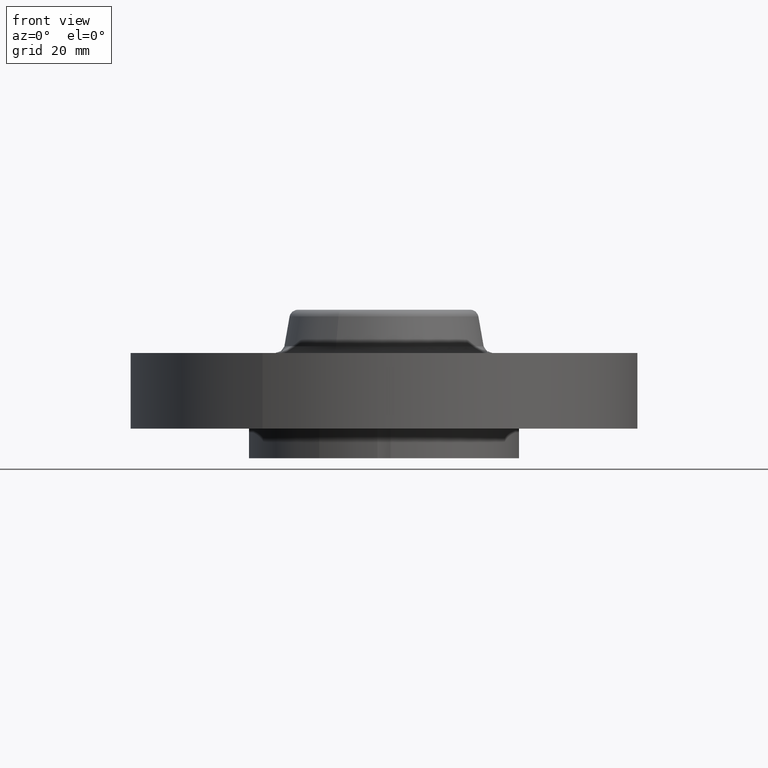
[diagram: clean part render]
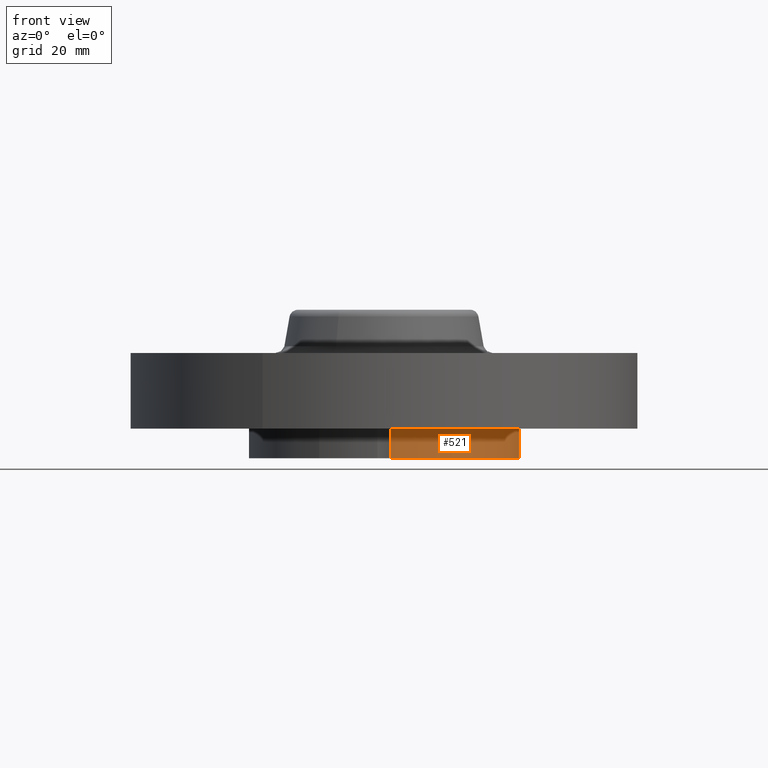
[diagram: same view with one face highlighted and labeled with its STEP entity id]
A machine part, front view. The second image highlights one B-rep face of the part: STEP entity #521.
In plain terms, the highlighted cylindrical surface (partial cylindrical patch) has radius 25.4 mm, axis along (0, 0, -1).
Its self-contained STEP definition (entity closure, byte-faithful):
#127=AXIS2_PLACEMENT_3D('Cylinder Axis2P3D',#124,#125,#126) ;
#489=AXIS2_PLACEMENT_3D('Circle Axis2P3D',#487,#488,$) ;
#505=AXIS2_PLACEMENT_3D('Circle Axis2P3D',#503,#504,$) ;
#124=CARTESIAN_POINT('Axis2P3D Location',(0.,0.,0.330625000001)) ;
#487=CARTESIAN_POINT('Axis2P3D Location',(0.,0.,-0.218750000001)) ;
#491=CARTESIAN_POINT('Vertex',(0.998807251912,-0.0488269754871,-0.218750000001)) ;
#493=CARTESIAN_POINT('Vertex',(0.0488269754871,-0.998807251912,-0.218750000001)) ;
#496=CARTESIAN_POINT('Line Origine',(0.998807251912,-0.0488269754871,-0.109375)) ;
#500=CARTESIAN_POINT('Vertex',(0.998807251912,-0.0488269754871,6.99353086378E-017)) ;
#503=CARTESIAN_POINT('Axis2P3D Location',(0.,0.,6.99353086378E-017)) ;
#507=CARTESIAN_POINT('Vertex',(0.0488269754871,-0.998807251912,6.99353086378E-017)) ;
#510=CARTESIAN_POINT('Line Origine',(0.0488269754871,-0.998807251912,-0.109375)) ;
#125=DIRECTION('Axis2P3D Direction',(0.,0.,-0.0393700787402)) ;
#126=DIRECTION('Axis2P3D XDirection',(0.0188750212049,0.0345504945626,0.)) ;
#488=DIRECTION('Axis2P3D Direction',(0.,0.,-0.0393700787402)) ;
#497=DIRECTION('Vector Direction',(0.,0.,-0.0393700787402)) ;
#504=DIRECTION('Axis2P3D Direction',(0.,0.,-0.0393700787402)) ;
#511=DIRECTION('Vector Direction',(0.,0.,-0.0393700787402)) ;
#498=VECTOR('Line Direction',#497,0.0393700787402) ;
#512=VECTOR('Line Direction',#511,0.0393700787402) ;
#516=ORIENTED_EDGE('',*,*,#495,.F.) ;
#517=ORIENTED_EDGE('',*,*,#502,.F.) ;
#518=ORIENTED_EDGE('',*,*,#509,.T.) ;
#519=ORIENTED_EDGE('',*,*,#514,.T.) ;
#521=ADVANCED_FACE('PartBody',(#520),#128,.T.) ;
#490=CIRCLE('generated circle',#489,1.) ;
#506=CIRCLE('generated circle',#505,1.) ;
#128=CYLINDRICAL_SURFACE('generated cylinder',#127,1.) ;
#495=EDGE_CURVE('',#492,#494,#490,.T.) ;
#502=EDGE_CURVE('',#501,#492,#499,.T.) ;
#509=EDGE_CURVE('',#501,#508,#506,.T.) ;
#514=EDGE_CURVE('',#508,#494,#513,.T.) ;
#515=EDGE_LOOP('',(#516,#517,#518,#519)) ;
#520=FACE_OUTER_BOUND('',#515,.T.) ;
#499=LINE('Line',#496,#498) ;
#513=LINE('Line',#510,#512) ;
#492=VERTEX_POINT('',#491) ;
#494=VERTEX_POINT('',#493) ;
#501=VERTEX_POINT('',#500) ;
#508=VERTEX_POINT('',#507) ;